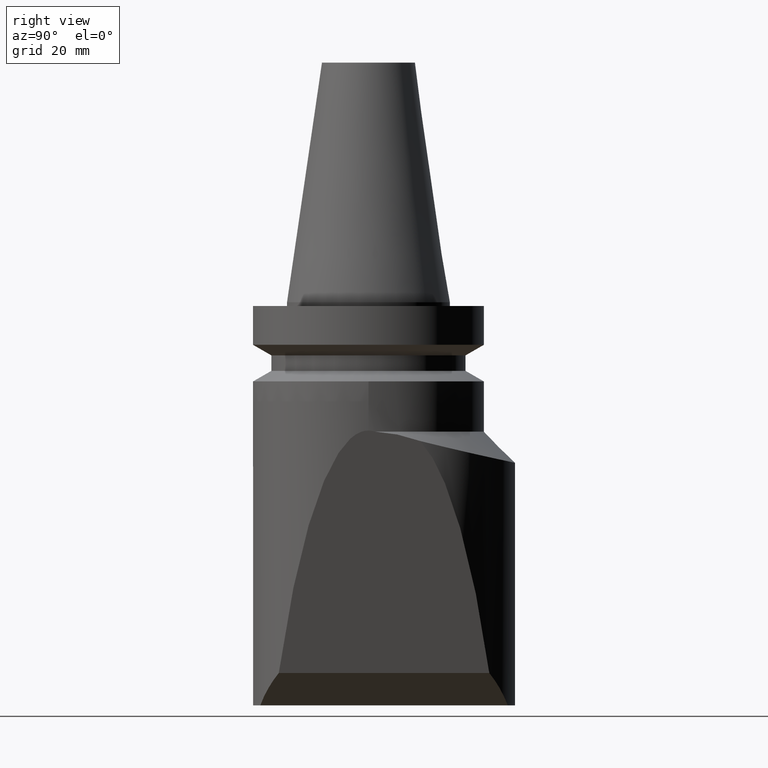
[diagram: clean part render]
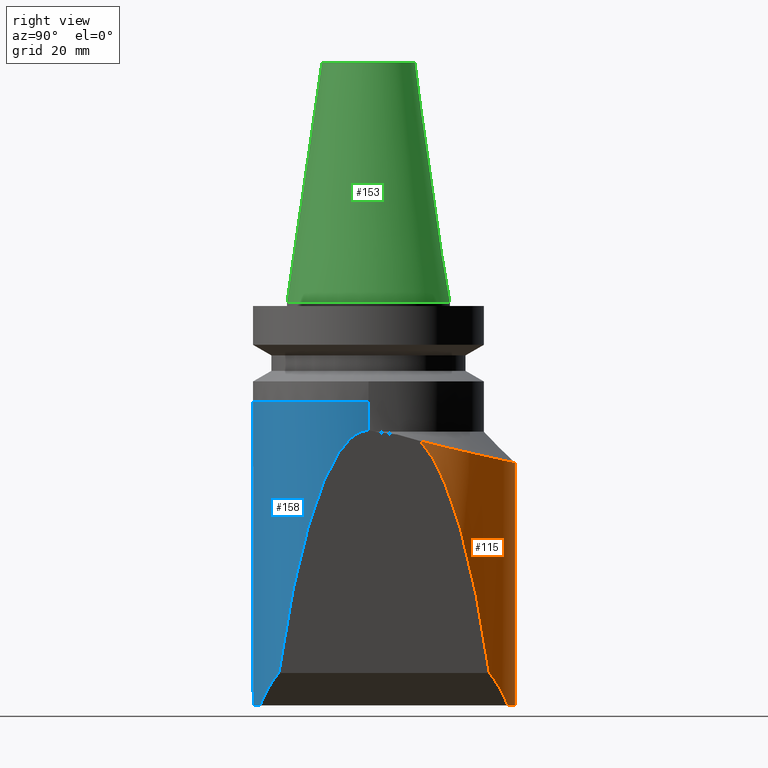
[diagram: same view with three faces highlighted in distinct colors, each labeled with its STEP entity id]
A machine part, right view with three faces highlighted in distinct colors.
Their STEP definitions:

[orange] entity #115 — the highlighted cylindrical surface (partial cylindrical patch) has radius 31.5 mm, axis along (-0, -0, -1).
#105=EDGE_CURVE('Unnamed[1]',#278,#285,#286,.T.);
#115=ADVANCED_FACE('Unnamed[1]',(#301),#302,.T.);
#125=EDGE_CURVE('Unnamed[1]',#316,#274,#317,.T.);
#142=EDGE_CURVE('Unnamed[1]',#274,#278,#344,.T.);
#177=EDGE_CURVE('Unnamed[1]',#316,#392,#393,.T.);
#233=EDGE_CURVE('Unnamed[1]',#392,#285,#463,.T.);
#274=VERTEX_POINT('',#502);
#278=VERTEX_POINT('',#507);
#285=VERTEX_POINT('',#516);
#286=CIRCLE('',#517,31.5);
#301=FACE_OUTER_BOUND('',#538,.T.);
#302=CYLINDRICAL_SURFACE('',#539,31.5);
#316=VERTEX_POINT('',#557);
#317=B_SPLINE_CURVE_WITH_KNOTS('',3,(#558,#559,#560,#561,#562,#563,#564,#565,#566,#567,#568,#569,#570,#571,#572,#573,#574,#575,#576,#577,#578,#579,#580,#581,#582,#583),.UNSPECIFIED.,.F.,.F.,(4,2,2,2,2,2,2,2,2,2,2,2,4),(13.5523629707951,16.8695139117605,20.2434166941126,23.6173194764646,26.9912222588167,30.6819251575849,34.372628056353,38.0633309551212,41.7540338538893,45.4447367526574,49.1354396514256,52.8261425501937,55.5120066657798),.UNSPECIFIED.);
#344=LINE('',#620,#621);
#392=VERTEX_POINT('',#702);
#393=ELLIPSE('',#703,181.401270219024,31.5);
#463=ELLIPSE('',#815,44.5477272147525,31.5);
#502=CARTESIAN_POINT('',(1.00783010340634,39.9873014653691,-43.799999999997));
#507=CARTESIAN_POINT('',(1.0078301027153,39.9873014653912,-109.999999999997));
#516=CARTESIAN_POINT('',(11.0,38.0203724434856,-110.0));
#517=AXIS2_PLACEMENT_3D('',#863,#864,#865);
#538=EDGE_LOOP('',(#877,#878,#879,#880,#881));
#539=AXIS2_PLACEMENT_3D('',#882,#883,#884);
#557=CARTESIAN_POINT('',(30.9958754829096,14.1164222816535,-37.8590322085949));
#558=CARTESIAN_POINT('',(30.9958753131781,14.1164222557077,-37.8590321894029));
#559=CARTESIAN_POINT('',(30.793817664624,15.2321819400384,-38.1376004738719));
#560=CARTESIAN_POINT('',(30.531052716232,16.3386153421072,-38.4104099191008));
#561=CARTESIAN_POINT('',(29.883294147766,18.5318091823496,-38.9451594489947));
#562=CARTESIAN_POINT('',(29.4962819300553,19.6179070546009,-39.2068371943069));
#563=CARTESIAN_POINT('',(28.6110384234499,21.7310798426322,-39.7107580826852));
#564=CARTESIAN_POINT('',(28.1127469460289,22.7582730164203,-39.9530332234781));
#565=CARTESIAN_POINT('',(27.0189601454885,24.7362016561597,-40.4152995267619));
#566=CARTESIAN_POINT('',(26.423453647462,25.6869304566385,-40.6352927677509));
#567=CARTESIAN_POINT('',(25.0944725985865,27.5816694207976,-41.0702405416985));
#568=CARTESIAN_POINT('',(24.3326178748947,28.5461225747869,-41.289532357557));
#569=CARTESIAN_POINT('',(22.6827553927543,30.3958583547623,-41.7067702003015));
#570=CARTESIAN_POINT('',(21.7947600427699,31.2811502292468,-41.9047242919041));
#571=CARTESIAN_POINT('',(19.9066897539899,32.9484663267577,-42.27500251672));
#572=CARTESIAN_POINT('',(18.9064817884331,33.7306236058766,-42.4473612098164));
#573=CARTESIAN_POINT('',(16.8118677124289,35.172277923217,-42.7632716325601));
#574=CARTESIAN_POINT('',(15.7174650051157,35.8317788330738,-42.9068282581538));
#575=CARTESIAN_POINT('',(13.4560752659673,37.0132772020049,-43.1628960990959));
#576=CARTESIAN_POINT('',(12.2876130925889,37.5360467762953,-43.2755771208803));
#577=CARTESIAN_POINT('',(9.89895291167647,38.4348349174581,-43.4687124797495));
#578=CARTESIAN_POINT('',(8.67875334567884,38.8108491102096,-43.5491678977451));
#579=CARTESIAN_POINT('',(6.21254709323926,39.4107862305031,-43.67730423394));
#580=CARTESIAN_POINT('',(4.96635093388658,39.6347431779085,-43.7249932514136));
#581=CARTESIAN_POINT('',(2.81431925338784,39.8907327917638,-43.7794721952073));
#582=CARTESIAN_POINT('',(1.908191707927,39.9584092320099,-43.7938603135948));
#583=CARTESIAN_POINT('',(1.00782898966437,39.9872679910011,-43.799994009641));
#620=CARTESIAN_POINT('',(1.00783010305223,39.9873014653804,-272.996571842879));
#621=VECTOR('',#930,1.0);
#702=CARTESIAN_POINT('',(19.8329668162767,32.9759316511563,-101.167033183723));
#703=AXIS2_PLACEMENT_3D('',#984,#985,#986);
#815=AXIS2_PLACEMENT_3D('',#1066,#1067,#1068);
#863=CARTESIAN_POINT('',(-1.16818919946748E-010,8.50342815723824,-109.999999999998));
#864=DIRECTION('',(-6.12323399573771E-017,-7.68610801420052E-014,-1.0));
#865=DIRECTION('',(1.0,-2.44929359829471E-016,-6.12323399573583E-017));
#877=ORIENTED_EDGE('',*,*,#233,.T.);
#878=ORIENTED_EDGE('',*,*,#105,.F.);
#879=ORIENTED_EDGE('',*,*,#142,.F.);
#880=ORIENTED_EDGE('',*,*,#125,.F.);
#881=ORIENTED_EDGE('',*,*,#177,.T.);
#882=CARTESIAN_POINT('',(-1.16828900608247E-010,8.50342815723822,-272.996571842879));
#883=DIRECTION('',(-6.12323399573677E-017,-1.22464679914735E-016,-1.0));
#884=DIRECTION('',(1.0,-2.44929359829471E-016,-6.12323399573677E-017));
#930=DIRECTION('',(-6.12323399573677E-017,-1.22464679914735E-016,-1.0));
#984=CARTESIAN_POINT('',(-1.16825266395727E-010,8.50342815723822,-213.645377318617));
#985=DIRECTION('',(-0.984807753012208,1.41869934745948E-016,0.173648177666931));
#986=DIRECTION('',(0.173648177666931,7.80726292586742E-017,0.984807753012208));
#1066=CARTESIAN_POINT('',(-1.16819593502488E-010,8.50342815723824,-121.000000000117));
#1067=DIRECTION('',(-0.707106781186547,1.73191211247099E-016,0.707106781186547));
#1068=DIRECTION('',(0.707106781186548,-8.65956056235492E-017,0.707106781186548));

[blue] entity #158 — the highlighted cylindrical surface (partial cylindrical patch) has radius 31.5 mm, axis along (-0, -0, -1).
#134=EDGE_CURVE('Unnamed[1]',#329,#330,#331,.T.);
#138=EDGE_CURVE('Unnamed[1]',#337,#338,#339,.T.);
#146=EDGE_CURVE('Unnamed[1]',#348,#349,#350,.T.);
#158=ADVANCED_FACE('Unnamed[1]',(#366),#367,.T.);
#162=EDGE_CURVE('Unnamed[1]',#337,#348,#372,.T.);
#205=EDGE_CURVE('Unnamed[1]',#329,#349,#432,.T.);
#209=EDGE_CURVE('Unnamed[1]',#338,#330,#436,.T.);
#329=VERTEX_POINT('',#599);
#330=VERTEX_POINT('',#600);
#331=LINE('',#601,#602);
#337=VERTEX_POINT('',#611);
#338=VERTEX_POINT('',#612);
#339=ELLIPSE('',#613,44.5477272147525,31.5);
#348=VERTEX_POINT('',#640);
#349=VERTEX_POINT('',#641);
#350=LINE('',#642,#643);
#366=FACE_OUTER_BOUND('',#666,.T.);
#367=CYLINDRICAL_SURFACE('',#667,31.5);
#372=CIRCLE('',#675,31.5);
#432=CIRCLE('',#756,31.5);
#436=ELLIPSE('',#771,181.401270219024,31.5);
#599=CARTESIAN_POINT('',(31.4999999533057,0.00171515184068361,-26.9999999999999));
#600=CARTESIAN_POINT('',(31.4999999533056,0.00171515031220165,-35.0000000000056));
#601=CARTESIAN_POINT('',(31.4999999533056,0.00171515031217251,-272.996571842879));
#602=VECTOR('',#922,1.0);
#611=CARTESIAN_POINT('',(11.0,-29.5135161290092,-110.0));
#612=CARTESIAN_POINT('',(19.8329668162767,-24.46907533668,-101.167033183723));
#613=AXIS2_PLACEMENT_3D('',#924,#925,#926);
#640=CARTESIAN_POINT('',(-27.0000000001171,-16.2215525823491,-109.999999999997));
#641=CARTESIAN_POINT('',(-27.0000000001171,-16.2215525823491,-26.9999999999999));
#642=CARTESIAN_POINT('',(-27.0000000001171,-16.2215525823492,-272.996571842879));
#643=VECTOR('',#931,1.0);
#666=EDGE_LOOP('',(#944,#945,#946,#947,#948,#949));
#667=AXIS2_PLACEMENT_3D('',#950,#951,#952);
#675=AXIS2_PLACEMENT_3D('',#954,#955,#956);
#756=AXIS2_PLACEMENT_3D('',#1035,#1036,#1037);
#771=AXIS2_PLACEMENT_3D('',#1038,#1039,#1040);
#922=DIRECTION('',(-6.12323399573677E-017,-1.22464679914735E-016,-1.0));
#924=CARTESIAN_POINT('',(-1.16706947614546E-010,0.0034281572382375,-121.000000000117));
#925=DIRECTION('',(-0.707106781186547,1.73191211247099E-016,0.707106781186547));
#926=DIRECTION('',(0.707106781186548,-8.65956056235492E-017,0.707106781186548));
#931=DIRECTION('',(6.12323399573677E-017,1.22464679914735E-016,1.0));
#944=ORIENTED_EDGE('',*,*,#205,.T.);
#945=ORIENTED_EDGE('',*,*,#146,.F.);
#946=ORIENTED_EDGE('',*,*,#162,.F.);
#947=ORIENTED_EDGE('',*,*,#138,.T.);
#948=ORIENTED_EDGE('',*,*,#209,.T.);
#949=ORIENTED_EDGE('',*,*,#134,.F.);
#950=CARTESIAN_POINT('',(-1.16716254720305E-010,0.00342815723821888,-272.996571842879));
#951=DIRECTION('',(-6.12323399573677E-017,-1.22464679914735E-016,-1.0));
#952=DIRECTION('',(1.0,-2.44929359829471E-016,-6.12323399573677E-017));
#954=CARTESIAN_POINT('',(-1.16706274058806E-010,0.00342815723823885,-109.999999999998));
#955=DIRECTION('',(-6.12323399573771E-017,-7.68610801420052E-014,-1.0));
#956=DIRECTION('',(1.0,-2.44929359829471E-016,-6.12323399573583E-017));
#1035=CARTESIAN_POINT('',(-1.1670119177459E-010,0.00342815723824901,-26.9999999999999));
#1036=DIRECTION('',(4.75661341793849E-017,1.71520267128062E-016,-1.0));
#1037=DIRECTION('',(1.0,-2.44929359829471E-016,4.75661341793849E-017));
#1038=CARTESIAN_POINT('',(-1.16712620507785E-010,0.00342815723822615,-213.645377318616));
#1039=DIRECTION('',(-0.984807753012208,1.41869934745948E-016,0.173648177666931));
#1040=DIRECTION('',(0.173648177666931,7.80726292586742E-017,0.984807753012208));

[green] entity #153 — the highlighted conical surface has half-angle 8.297 deg.
#117=EDGE_CURVE('Unnamed[1]',#304,#304,#305,.T.);
#129=EDGE_CURVE('Unnamed[1]',#322,#322,#323,.T.);
#153=ADVANCED_FACE('Unnamed[1]',(#358,#359),#360,.T.);
#304=VERTEX_POINT('',#542);
#305=CIRCLE('',#543,22.2250000000001);
#322=VERTEX_POINT('',#590);
#323=CIRCLE('',#591,12.6875000000001);
#358=FACE_BOUND('',#655,.T.);
#359=FACE_BOUND('',#656,.T.);
#360=CONICAL_SURFACE('',#657,17.4562500000001,0.14481249823894);
#542=CARTESIAN_POINT('',(-2.721777511105E-015,-22.2250000000001,1.16408615232721E-013));
#543=AXIS2_PLACEMENT_3D('',#885,#886,#887);
#590=CARTESIAN_POINT('',(2.45082440679364E-015,-12.6875000000001,65.4000000000001));
#591=AXIS2_PLACEMENT_3D('',#905,#906,#907);
#655=EDGE_LOOP('',(#937));
#656=EDGE_LOOP('',(#938));
#657=AXIS2_PLACEMENT_3D('',#939,#940,#941);
#885=CARTESIAN_POINT('',(6.95640600085639E-030,-7.14548049941386E-015,1.27897692436818E-013));
#886=DIRECTION('',(-6.12323399573676E-017,1.97960454588128E-016,-1.0));
#887=DIRECTION('',(-1.22464679914735E-016,-1.0,-1.97960454588128E-016));
#905=CARTESIAN_POINT('',(4.00459503321185E-015,-2.00920942294774E-014,65.4000000000001));
#906=DIRECTION('',(-6.12323399573676E-017,1.97960454588128E-016,-1.0));
#907=DIRECTION('',(-1.22464679914735E-016,-1.0,-1.97960454588128E-016));
#937=ORIENTED_EDGE('',*,*,#117,.F.);
#938=ORIENTED_EDGE('',*,*,#129,.T.);
#939=CARTESIAN_POINT('',(2.00229751660593E-015,-1.36187873644457E-014,32.7000000000001));
#940=DIRECTION('',(-6.12323399573676E-017,1.97960454588128E-016,-1.0));
#941=DIRECTION('',(-1.22464679914735E-016,-1.0,-1.97960454588128E-016));